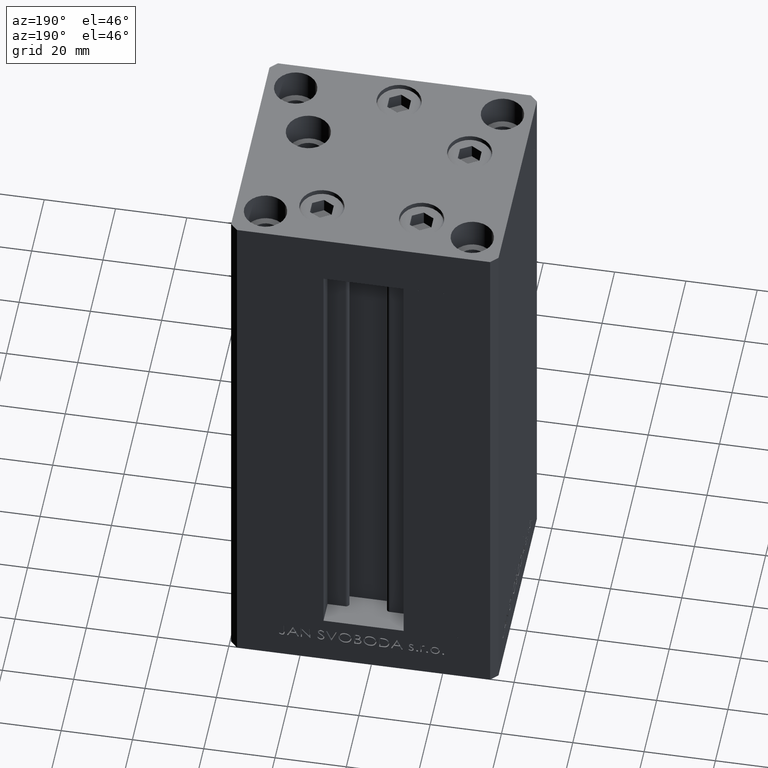
[diagram: clean part render]
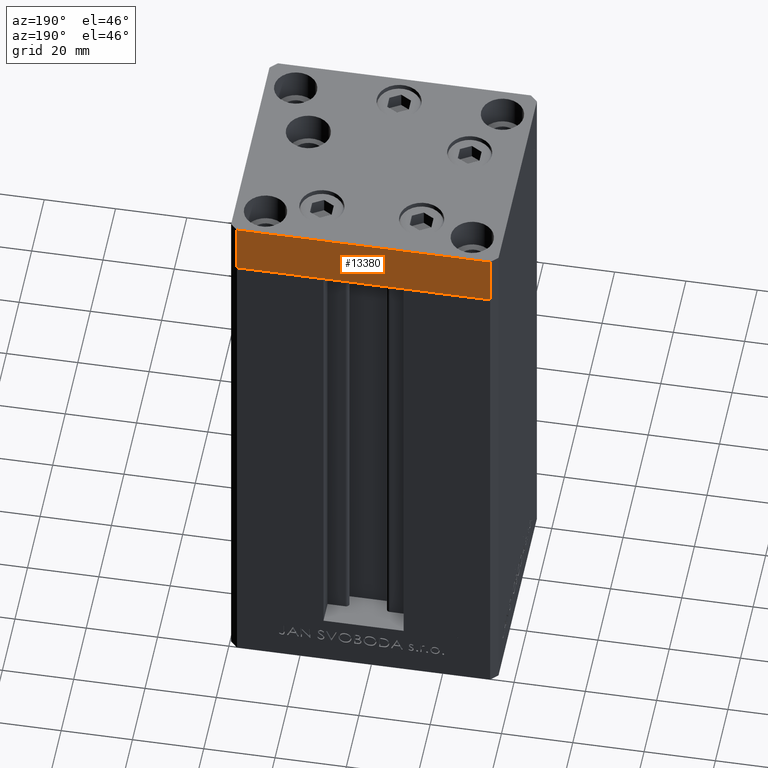
[diagram: same view with one face highlighted and labeled with its STEP entity id]
A machine part, auxiliary view. The second image highlights one B-rep face of the part: STEP entity #13380.
In plain terms, the highlighted planar face has unit normal (-0, 1, 0).
Its self-contained STEP definition (entity closure, byte-faithful):
#216 = ORIENTED_EDGE ( 'NONE', *, *, #12842, .T. ) ;
#3722 = VECTOR ( 'NONE', #8831, 1000.000000000000000 ) ;
#3762 = VERTEX_POINT ( 'NONE', #12255 ) ;
#5921 = ORIENTED_EDGE ( 'NONE', *, *, #11982, .F. ) ;
#5936 = EDGE_CURVE ( 'NONE', #3762, #36905, #35749, .T. ) ;
#6070 = DIRECTION ( 'NONE',  ( 0.000000000000000000, 0.000000000000000000, 1.000000000000000000 ) ) ;
#7167 = CARTESIAN_POINT ( 'NONE',  ( 35.49999999999992184, 32.50000000000000711, -15.00000000000000000 ) ) ;
#7246 = VERTEX_POINT ( 'NONE', #9712 ) ;
#7901 = DIRECTION ( 'NONE',  ( -1.000000000000000000, -1.954618001100629052E-16, 0.000000000000000000 ) ) ;
#8430 = EDGE_CURVE ( 'NONE', #3762, #43931, #38080, .T. ) ;
#8831 = DIRECTION ( 'NONE',  ( -1.000000000000000000, -1.954618001100629052E-16, 0.000000000000000000 ) ) ;
#9712 = CARTESIAN_POINT ( 'NONE',  ( -35.50000000000002842, 32.49999999999999289, 0.000000000000000000 ) ) ;
#10421 = CARTESIAN_POINT ( 'NONE',  ( 35.49999999999992184, 32.50000000000000711, 0.000000000000000000 ) ) ;
#11982 = EDGE_CURVE ( 'NONE', #36905, #7246, #38518, .T. ) ;
#12255 = CARTESIAN_POINT ( 'NONE',  ( 35.49999999999992184, 32.50000000000000711, -15.00000000000000000 ) ) ;
#12281 = CARTESIAN_POINT ( 'NONE',  ( 35.49999999999992184, 32.50000000000000711, 0.000000000000000000 ) ) ;
#12323 = DIRECTION ( 'NONE',  ( -1.000000000000000000, -1.954618001100629052E-16, 0.000000000000000000 ) ) ;
#12842 = EDGE_CURVE ( 'NONE', #43931, #7246, #32054, .T. ) ;
#13380 = ADVANCED_FACE ( 'NONE', ( #15792 ), #45989, .T. ) ;
#15792 = FACE_OUTER_BOUND ( 'NONE', #28210, .T. ) ;
#16930 = CARTESIAN_POINT ( 'NONE',  ( 35.49999999999992184, 32.50000000000000711, -15.00000000000000000 ) ) ;
#19556 = VECTOR ( 'NONE', #6070, 1000.000000000000000 ) ;
#22700 = AXIS2_PLACEMENT_3D ( 'NONE', #31140, #46227, #12323 ) ;
#28210 = EDGE_LOOP ( 'NONE', ( #5921, #46774, #28248, #216 ) ) ;
#28248 = ORIENTED_EDGE ( 'NONE', *, *, #8430, .T. ) ;
#28333 = CARTESIAN_POINT ( 'NONE',  ( -35.50000000000002842, 32.49999999999999289, -15.00000000000000000 ) ) ;
#31140 = CARTESIAN_POINT ( 'NONE',  ( 35.49999999999992184, 32.50000000000000711, -15.00000000000000000 ) ) ;
#32042 = DIRECTION ( 'NONE',  ( 0.000000000000000000, 0.000000000000000000, 1.000000000000000000 ) ) ;
#32054 = LINE ( 'NONE', #28333, #19556 ) ;
#35215 = VECTOR ( 'NONE', #7901, 1000.000000000000000 ) ;
#35749 = LINE ( 'NONE', #16930, #39417 ) ;
#36818 = CARTESIAN_POINT ( 'NONE',  ( -35.50000000000002842, 32.49999999999999289, -15.00000000000000000 ) ) ;
#36905 = VERTEX_POINT ( 'NONE', #10421 ) ;
#38080 = LINE ( 'NONE', #7167, #35215 ) ;
#38518 = LINE ( 'NONE', #12281, #3722 ) ;
#39417 = VECTOR ( 'NONE', #32042, 1000.000000000000000 ) ;
#43931 = VERTEX_POINT ( 'NONE', #36818 ) ;
#45989 = PLANE ( 'NONE',  #22700 ) ;
#46227 = DIRECTION ( 'NONE',  ( -1.954618001100629052E-16, 1.000000000000000000, 0.000000000000000000 ) ) ;
#46774 = ORIENTED_EDGE ( 'NONE', *, *, #5936, .F. ) ;